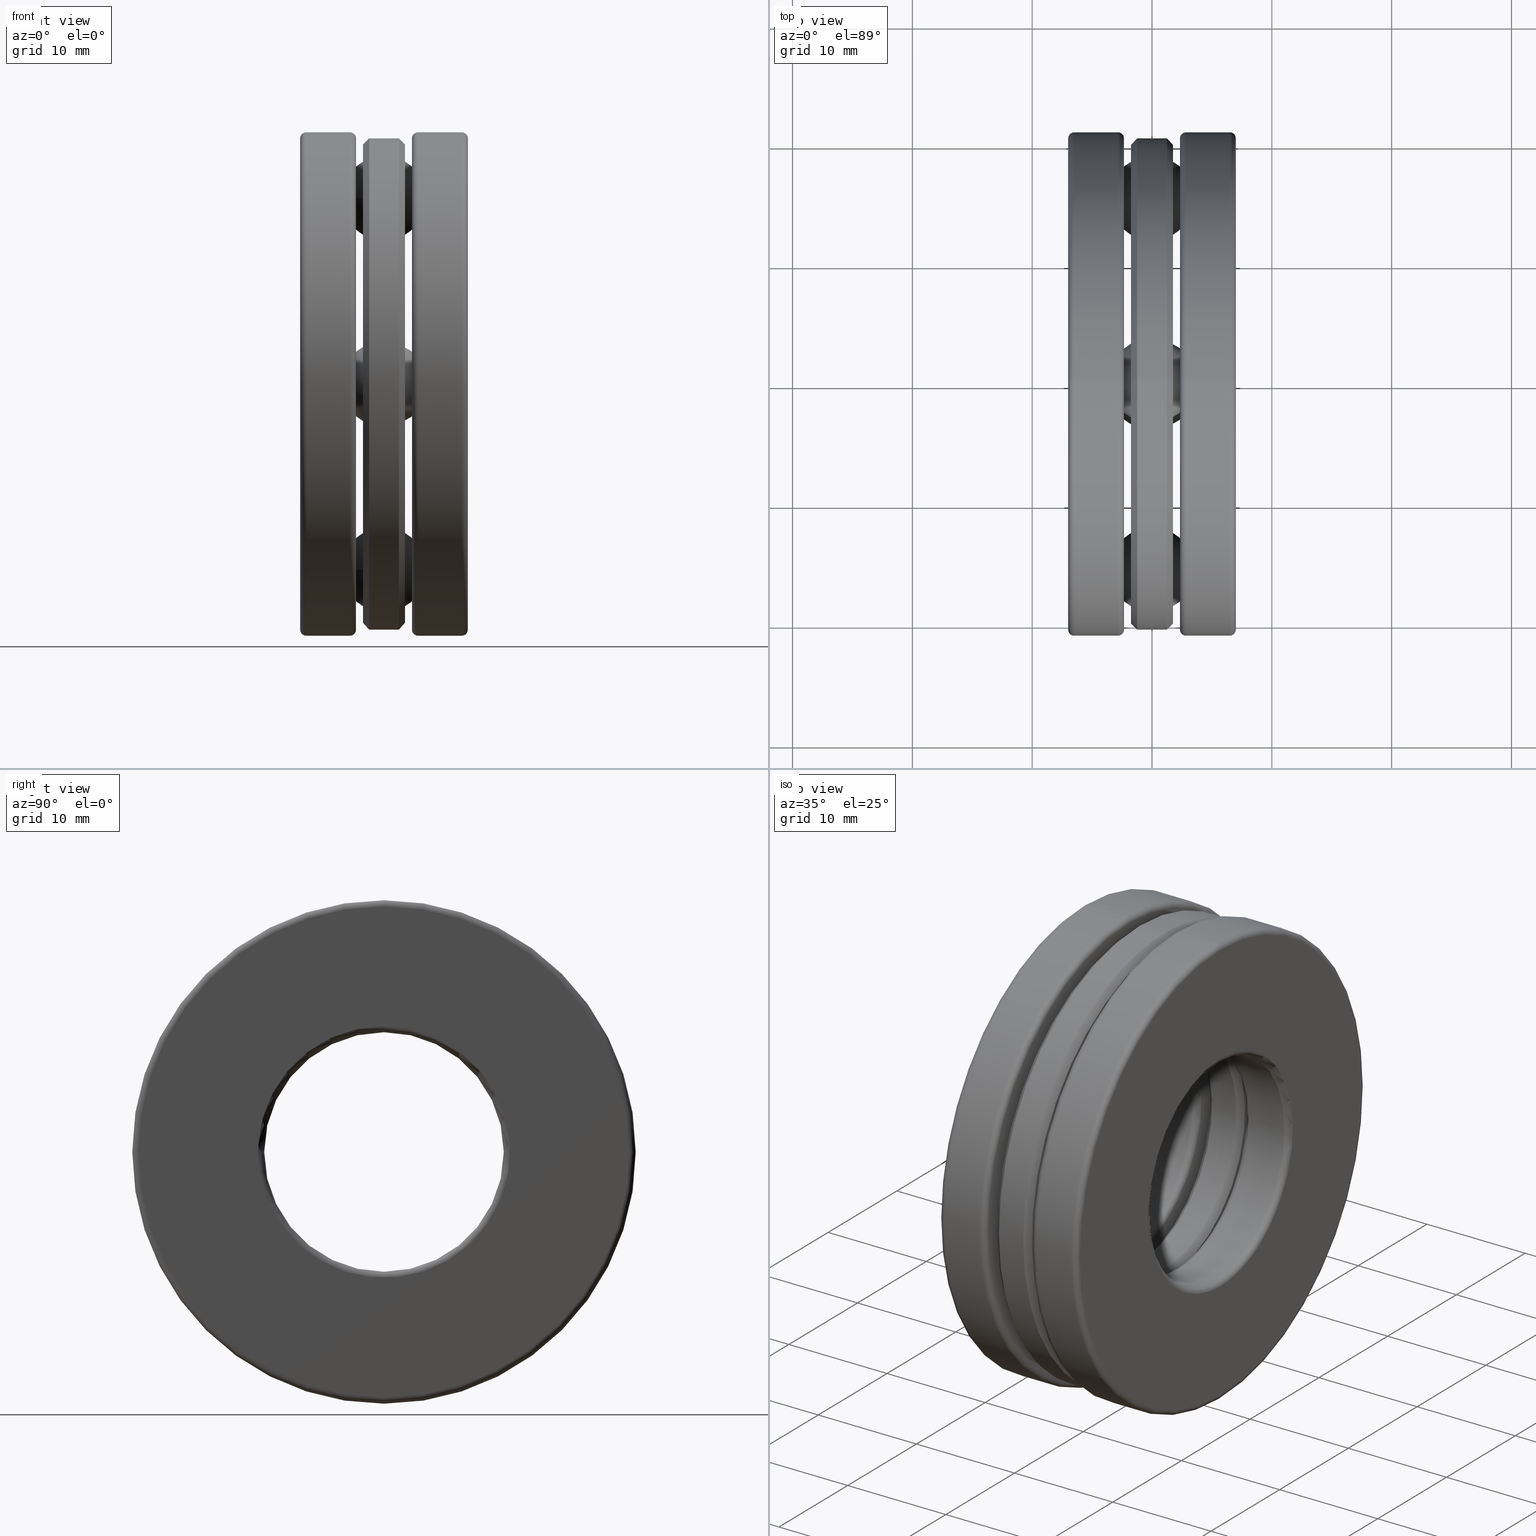
[diagram: canonical four-view strip — front | top / right | iso, engineering-drawing reading convention]
A machine part, canonical four-view strip (front | top / right | iso — engineering-drawing reading convention). The complete STEP part file that produces these views, byte-faithful:
ISO-10303-21;
HEADER;
FILE_DESCRIPTION (( 'STEP AP203' ),
    '1' );
FILE_NAME ('2904.5-ABB.step',
    '2017-03-07T16:42:55',
    ( '' ),
    ( '' ),
    'SwSTEP 2.0',
    'SolidWorks 2017',
    '' );
FILE_SCHEMA (( 'CONFIG_CONTROL_DESIGN' ));
ENDSEC;

DATA;
#1 = EDGE_LOOP ( 'NONE', ( #686 ) ) ;
#2 = DIRECTION ( 'NONE',  ( 0.0000000000000000000, 0.0000000000000000000, 1.000000000000000000 ) ) ;
#3 = PERSON_AND_ORGANIZATION ( #761, #297 ) ;
#4 = DIRECTION ( 'NONE',  ( 0.0000000000000000000, 0.0000000000000000000, 1.000000000000000000 ) ) ;
#5 = AXIS2_PLACEMENT_3D ( 'NONE', #178, #387, #816 ) ;
#6 = ORIENTED_EDGE ( 'NONE', *, *, #511, .T. ) ;
#7 = FACE_OUTER_BOUND ( 'NONE', #1, .T. ) ;
#8 = CIRCLE ( 'NONE', #5, 0.8069999999999999400 ) ;
#9 = EDGE_LOOP ( 'NONE', ( #657 ) ) ;
#10 = CIRCLE ( 'NONE', #358, 0.4334999999999999400 ) ;
#11 = CARTESIAN_POINT ( 'NONE',  ( 0.2755000000000001300, 0.0000000000000000000, 0.4135000000000000300 ) ) ;
#12 = AXIS2_PLACEMENT_3D ( 'NONE', #439, #689, #263 ) ;
#13 = EDGE_LOOP ( 'NONE', ( #453 ) ) ;
#14 = CARTESIAN_POINT ( 'NONE',  ( 0.09183517000000049300, 0.0000000000000000000, 0.0000000000000000000 ) ) ;
#15 = EDGE_LOOP ( 'NONE', ( #269 ) ) ;
#16 = AXIS2_PLACEMENT_3D ( 'NONE', #168, #612, #239 ) ;
#17 = CARTESIAN_POINT ( 'NONE',  ( -0.1118351699999999400, 0.0000000000000000000, 0.3934999999999999600 ) ) ;
#18 = VERTEX_POINT ( 'NONE', #77 ) ;
#19 = ADVANCED_FACE ( 'NONE', ( #340, #539 ), #139, .F. ) ;
#20 = CARTESIAN_POINT ( 'NONE',  ( 3.475782830664319800E-017, 0.6102499999999999600, 0.0000000000000000000 ) ) ;
#21 = ORIENTED_EDGE ( 'NONE', *, *, #219, .T. ) ;
#22 = APPLICATION_PROTOCOL_DEFINITION ( 'international standard', 'config_control_design', 1994, #294 ) ;
#23 = FACE_BOUND ( 'NONE', #375, .T. ) ;
#24 = DATE_TIME_ROLE ( 'creation_date' ) ;
#25 = EDGE_LOOP ( 'NONE', ( #418 ) ) ;
#26 = CARTESIAN_POINT ( 'NONE',  ( -0.1118351699999999400, 0.0000000000000000000, 0.0000000000000000000 ) ) ;
#27 = COORDINATED_UNIVERSAL_TIME_OFFSET ( 5, 0, .BEHIND. ) ;
#28 = VERTEX_POINT ( 'NONE', #217 ) ;
#29 = AXIS2_PLACEMENT_3D ( 'NONE', #254, #505, #2 ) ;
#30 = CIRCLE ( 'NONE', #198, 0.7869999999999998100 ) ;
#31 = PRODUCT_DEFINITION_SHAPE ( 'NONE', 'NONE',  #537 ) ;
#32 = AXIS2_PLACEMENT_3D ( 'NONE', #321, #378, #568 ) ;
#33 = DIRECTION ( 'NONE',  ( -1.000000000000000000, -0.0000000000000000000, -0.0000000000000000000 ) ) ;
#34 = CALENDAR_DATE ( 2017, 7, 3 ) ;
#35 = FACE_OUTER_BOUND ( 'NONE', #819, .T. ) ;
#36 = DIRECTION ( 'NONE',  ( -1.000000000000000000, -0.0000000000000000000, -0.0000000000000000000 ) ) ;
#37 = CC_DESIGN_PERSON_AND_ORGANIZATION_ASSIGNMENT ( #381, #404, ( #537 ) ) ;
#38 = DIRECTION ( 'NONE',  ( -1.000000000000000000, -0.0000000000000000000, -0.0000000000000000000 ) ) ;
#39 = EDGE_LOOP ( 'NONE', ( #60 ) ) ;
#40 = CARTESIAN_POINT ( 'NONE',  ( -0.09183516999999991000, 0.0000000000000000000, 0.0000000000000000000 ) ) ;
#41 = ORIENTED_EDGE ( 'NONE', *, *, #326, .F. ) ;
#42 = AXIS2_PLACEMENT_3D ( 'NONE', #137, #588, #279 ) ;
#43 = FACE_OUTER_BOUND ( 'NONE', #640, .T. ) ;
#44 = CARTESIAN_POINT ( 'NONE',  ( 3.475782830664319800E-017, -0.6102499999999999600, 0.0000000000000000000 ) ) ;
#45 = ORIENTED_EDGE ( 'NONE', *, *, #288, .T. ) ;
#46 = CARTESIAN_POINT ( 'NONE',  ( -0.06887500000000002000, 0.0000000000000000000, 0.0000000000000000000 ) ) ;
#47 = VERTEX_POINT ( 'NONE', #403 ) ;
#48 = FACE_OUTER_BOUND ( 'NONE', #457, .T. ) ;
#49 = DIRECTION ( 'NONE',  ( 1.000000000000000000, -0.0000000000000000000, 0.0000000000000000000 ) ) ;
#50 = DIRECTION ( 'NONE',  ( -0.0000000000000000000, -0.0000000000000000000, -1.000000000000000000 ) ) ;
#51 = CARTESIAN_POINT ( 'NONE',  ( 0.09183517000000049300, 0.0000000000000000000, 0.0000000000000000000 ) ) ;
#52 = APPROVAL ( #737, 'UNSPECIFIED' ) ;
#53 = CONICAL_SURFACE ( 'NONE', #762, 0.8069999999999999400, 0.7853981633974498300 ) ;
#54 = EDGE_LOOP ( 'NONE', ( #125 ) ) ;
#55 = CARTESIAN_POINT ( 'NONE',  ( 0.06887500000000003300, 0.6102499999999999600, 0.0000000000000000000 ) ) ;
#56 = DIRECTION ( 'NONE',  ( -1.000000000000000000, 0.0000000000000000000, 0.0000000000000000000 ) ) ;
#57 = DIRECTION ( 'NONE',  ( 0.0000000000000000000, 1.000000000000000000, -1.032657317192676500E-014 ) ) ;
#58 = FACE_OUTER_BOUND ( 'NONE', #63, .T. ) ;
#59 = AXIS2_PLACEMENT_3D ( 'NONE', #510, #258, #4 ) ;
#60 = ORIENTED_EDGE ( 'NONE', *, *, #300, .F. ) ;
#61 = ORIENTED_EDGE ( 'NONE', *, *, #519, .T. ) ;
#62 = FACE_OUTER_BOUND ( 'NONE', #436, .T. ) ;
#63 = EDGE_LOOP ( 'NONE', ( #732 ) ) ;
#64 = VERTEX_POINT ( 'NONE', #298 ) ;
#65 = CIRCLE ( 'NONE', #772, 0.8069999999999999400 ) ;
#66 = AXIS2_PLACEMENT_3D ( 'NONE', #766, #443, #756 ) ;
#67 = CARTESIAN_POINT ( 'NONE',  ( 0.04887499999999999500, 0.0000000000000000000, 0.8069999999999999400 ) ) ;
#68 = TOROIDAL_SURFACE ( 'NONE', #363, 0.8069999999999999400, 0.01999999999999978500 ) ;
#69 = CYLINDRICAL_SURFACE ( 'NONE', #503, 0.1455000000000000500 ) ;
#70 = AXIS2_PLACEMENT_3D ( 'NONE', #284, #532, #727 ) ;
#71 = ORIENTED_EDGE ( 'NONE', *, *, #430, .T. ) ;
#72 = ORIENTED_EDGE ( 'NONE', *, *, #326, .T. ) ;
#73 = CARTESIAN_POINT ( 'NONE',  ( -0.09183516999999991000, 0.0000000000000000000, 0.0000000000000000000 ) ) ;
#74 = CIRCLE ( 'NONE', #514, 0.4134999999999999800 ) ;
#75 = CARTESIAN_POINT ( 'NONE',  ( 0.0000000000000000000, 0.0000000000000000000, 0.0000000000000000000 ) ) ;
#76 = CARTESIAN_POINT ( 'NONE',  ( -0.06887499999999997800, 0.0000000000000000000, 0.0000000000000000000 ) ) ;
#77 = CARTESIAN_POINT ( 'NONE',  ( 0.09183517000000049300, 0.0000000000000000000, 0.4134999999999999800 ) ) ;
#78 = EDGE_LOOP ( 'NONE', ( #755 ) ) ;
#79 = DIRECTION ( 'NONE',  ( -1.000000000000000000, -0.0000000000000000000, -0.0000000000000000000 ) ) ;
#80 = DIRECTION ( 'NONE',  ( 0.0000000000000000000, 0.0000000000000000000, 1.000000000000000000 ) ) ;
#81 = ADVANCED_FACE ( 'NONE', ( #359, #185 ), #506, .T. ) ;
#82 = FACE_OUTER_BOUND ( 'NONE', #771, .T. ) ;
#83 = AXIS2_PLACEMENT_3D ( 'NONE', #14, #644, #454 ) ;
#84 = MECHANICAL_CONTEXT ( 'NONE', #294, 'mechanical' ) ;
#85 = PERSON_AND_ORGANIZATION ( #761, #297 ) ;
#86 = ADVANCED_FACE ( 'NONE', ( #304, #647 ), #315, .F. ) ;
#87 = FACE_OUTER_BOUND ( 'NONE', #702, .T. ) ;
#88 = APPROVAL_STATUS ( 'not_yet_approved' ) ;
#89 = DIRECTION ( 'NONE',  ( -1.000000000000000000, -0.0000000000000000000, -0.0000000000000000000 ) ) ;
#90 = EDGE_CURVE ( 'NONE', #392, #392, #248, .T. ) ;
#91 = CARTESIAN_POINT ( 'NONE',  ( -0.09183516999999991000, 0.0000000000000000000, 0.4134999999999999800 ) ) ;
#92 = ADVANCED_FACE ( 'NONE', ( ), #432, .T. ) ;
#93 = PERSON_AND_ORGANIZATION_ROLE ( 'design_supplier' ) ;
#94 = ORIENTED_EDGE ( 'NONE', *, *, #697, .F. ) ;
#95 = CC_DESIGN_APPROVAL ( #52, ( #797 ) ) ;
#96 = MANIFOLD_SOLID_BREP ( 'CirPattern4[1]', #547 ) ;
#97 = CARTESIAN_POINT ( 'NONE',  ( -0.06887500000000002000, 0.0000000000000000000, 0.7869999999999998100 ) ) ;
#98 = CIRCLE ( 'NONE', #261, 0.8070000000000000500 ) ;
#99 = DIRECTION ( 'NONE',  ( 0.0000000000000000000, 0.0000000000000000000, -1.000000000000000000 ) ) ;
#100 = CARTESIAN_POINT ( 'NONE',  ( -0.2755393700787402400, -2.130676487029022000E-015, -0.6102499999999999600 ) ) ;
#101 = EDGE_LOOP ( 'NONE', ( #726 ) ) ;
#102 = AXIS2_PLACEMENT_3D ( 'NONE', #55, #49, #324 ) ;
#103 = DIRECTION ( 'NONE',  ( 0.0000000000000000000, 0.0000000000000000000, -1.000000000000000000 ) ) ;
#104 = DIMENSIONAL_EXPONENTS ( 1.000000000000000000, 0.0000000000000000000, 0.0000000000000000000, 0.0000000000000000000, 0.0000000000000000000, 0.0000000000000000000, 0.0000000000000000000 ) ;
#105 = FACE_OUTER_BOUND ( 'NONE', #634, .T. ) ;
#106 = CARTESIAN_POINT ( 'NONE',  ( 0.06887500000000004700, 0.0000000000000000000, 0.0000000000000000000 ) ) ;
#107 = EDGE_LOOP ( 'NONE', ( #601 ) ) ;
#108 = PLANE ( 'NONE',  #16 ) ;
#109 = PERSON_AND_ORGANIZATION ( #761, #297 ) ;
#110 = VERTEX_POINT ( 'NONE', #662 ) ;
#111 = TOROIDAL_SURFACE ( 'NONE', #724, 0.8070000000000000500, 0.01999999999999997600 ) ;
#112 = ORIENTED_EDGE ( 'NONE', *, *, #288, .F. ) ;
#113 = AXIS2_PLACEMENT_3D ( 'NONE', #373, #504, #253 ) ;
#114 = FACE_OUTER_BOUND ( 'NONE', #364, .T. ) ;
#115 = EDGE_LOOP ( 'NONE', ( #667 ) ) ;
#116 = DIRECTION ( 'NONE',  ( 0.0000000000000000000, -1.000000000000000000, 1.047444401652940200E-014 ) ) ;
#117 = VERTEX_POINT ( 'NONE', #720 ) ;
#118 = SPHERICAL_SURFACE ( 'NONE', #206, 0.1405000000000000400 ) ;
#119 = EDGE_CURVE ( 'NONE', #632, #632, #235, .T. ) ;
#120 = CARTESIAN_POINT ( 'NONE',  ( -0.2755393700787402400, -0.6102499999999999600, 0.0000000000000000000 ) ) ;
#121 = CARTESIAN_POINT ( 'NONE',  ( -0.2555000000000000600, 0.0000000000000000000, 0.3934999999999999600 ) ) ;
#122 = CLOSED_SHELL ( 'NONE', ( #207, #410, #796, #783, #789, #734, #155, #417, #81, #728 ) ) ;
#123 = AXIS2_PLACEMENT_3D ( 'NONE', #20, #604, #229 ) ;
#124 = CIRCLE ( 'NONE', #102, 0.1455000000000000500 ) ;
#125 = ORIENTED_EDGE ( 'NONE', *, *, #90, .F. ) ;
#126 = PERSON_AND_ORGANIZATION ( #761, #297 ) ;
#127 = VERTEX_POINT ( 'NONE', #133 ) ;
#128 = AXIS2_PLACEMENT_3D ( 'NONE', #194, #638, #330 ) ;
#129 = CLOSED_SHELL ( 'NONE', ( #602, #286, #725, #462, #595, #536, #718, #295, #466, #663, #153, #19 ) ) ;
#130 = FACE_BOUND ( 'NONE', #15, .T. ) ;
#131 = EDGE_LOOP ( 'NONE', ( #452 ) ) ;
#132 = CARTESIAN_POINT ( 'NONE',  ( 0.0000000000000000000, 0.0000000000000000000, 0.0000000000000000000 ) ) ;
#133 = CARTESIAN_POINT ( 'NONE',  ( 0.06887500000000003300, 0.6102499999999999600, -0.1455000000000000500 ) ) ;
#134 = FACE_BOUND ( 'NONE', #323, .T. ) ;
#135 = PLANE ( 'NONE',  #42 ) ;
#136 = CARTESIAN_POINT ( 'NONE',  ( -0.09183516999999991000, 0.0000000000000000000, 0.7165822695660687400 ) ) ;
#137 = CARTESIAN_POINT ( 'NONE',  ( -0.09183516999999991000, 0.0000000000000000000, 0.0000000000000000000 ) ) ;
#138 = AXIS2_PLACEMENT_3D ( 'NONE', #376, #256, #690 ) ;
#139 = CYLINDRICAL_SURFACE ( 'NONE', #585, 0.1455000000000000500 ) ;
#140 = EDGE_LOOP ( 'NONE', ( #148 ) ) ;
#141 = DIRECTION ( 'NONE',  ( -1.000000000000000000, -0.0000000000000000000, -0.0000000000000000000 ) ) ;
#142 = VERTEX_POINT ( 'NONE', #792 ) ;
#143 = CARTESIAN_POINT ( 'NONE',  ( 0.2755000000000001300, 0.0000000000000000000, 0.8069999999999999400 ) ) ;
#144 = DIRECTION ( 'NONE',  ( 0.0000000000000000000, 0.0000000000000000000, 1.000000000000000000 ) ) ;
#145 = APPROVAL_STATUS ( 'not_yet_approved' ) ;
#146 = ORIENTED_EDGE ( 'NONE', *, *, #393, .F. ) ;
#147 = CARTESIAN_POINT ( 'NONE',  ( 0.2555000000000006200, 0.0000000000000000000, 0.8269999999999999600 ) ) ;
#148 = ORIENTED_EDGE ( 'NONE', *, *, #625, .F. ) ;
#149 = AXIS2_PLACEMENT_3D ( 'NONE', #76, #416, #456 ) ;
#150 = PERSON_AND_ORGANIZATION_ROLE ( 'creator' ) ;
#151 = CYLINDRICAL_SURFACE ( 'NONE', #448, 0.3934999999999999600 ) ;
#152 = MANIFOLD_SOLID_BREP ( 'CirPattern7', #129 ) ;
#153 = ADVANCED_FACE ( 'NONE', ( #62, #105 ), #69, .F. ) ;
#154 = AXIS2_PLACEMENT_3D ( 'NONE', #44, #50, #56 ) ;
#155 = ADVANCED_FACE ( 'NONE', ( #467, #395 ), #589, .T. ) ;
#156 = DIRECTION ( 'NONE',  ( -1.000000000000000000, -0.0000000000000000000, -0.0000000000000000000 ) ) ;
#157 = EDGE_LOOP ( 'NONE', ( #516 ) ) ;
#158 = EDGE_CURVE ( 'NONE', #671, #671, #752, .T. ) ;
#159 = DIRECTION ( 'NONE',  ( 0.0000000000000000000, -1.000000000000000000, 3.285727827431243100E-015 ) ) ;
#160 = EDGE_LOOP ( 'NONE', ( #624 ) ) ;
#161 = PERSON_AND_ORGANIZATION ( #761, #297 ) ;
#162 = AXIS2_PLACEMENT_3D ( 'NONE', #764, #571, #760 ) ;
#163 = DIRECTION ( 'NONE',  ( 0.0000000000000000000, 0.0000000000000000000, 1.000000000000000000 ) ) ;
#164 = LENGTH_MEASURE_WITH_UNIT ( LENGTH_MEASURE( 0.02539999999999999900 ), #179 );
#165 = EDGE_CURVE ( 'NONE', #240, #240, #281, .T. ) ;
#166 = CARTESIAN_POINT ( 'NONE',  ( 0.2555000000000006200, 0.0000000000000000000, 0.0000000000000000000 ) ) ;
#167 = CIRCLE ( 'NONE', #636, 0.5039177304339316200 ) ;
#168 = CARTESIAN_POINT ( 'NONE',  ( -0.06887499999999997800, -8.316656230711899400E-018, 0.0000000000000000000 ) ) ;
#169 = ADVANCED_BREP_SHAPE_REPRESENTATION ( '2904.5-ABB', ( #442, #779, #741, #96, #332, #703, #152, #498 ), #292 ) ;
#170 = DIRECTION ( 'NONE',  ( 0.0000000000000000000, 0.0000000000000000000, 1.000000000000000000 ) ) ;
#171 = DIRECTION ( 'NONE',  ( -1.000000000000000000, -0.0000000000000000000, -0.0000000000000000000 ) ) ;
#172 = ORIENTED_EDGE ( 'NONE', *, *, #472, .F. ) ;
#173 = DIRECTION ( 'NONE',  ( -1.000000000000000000, -0.0000000000000000000, -0.0000000000000000000 ) ) ;
#174 = COORDINATED_UNIVERSAL_TIME_OFFSET ( 5, 0, .BEHIND. ) ;
#175 = VERTEX_POINT ( 'NONE', #593 ) ;
#176 = CARTESIAN_POINT ( 'NONE',  ( -0.09183516999999991000, 0.0000000000000000000, 0.0000000000000000000 ) ) ;
#177 = CIRCLE ( 'NONE', #162, 0.1455000000000000500 ) ;
#178 = CARTESIAN_POINT ( 'NONE',  ( 0.2755000000000001300, 0.0000000000000000000, 0.0000000000000000000 ) ) ;
#179 =( LENGTH_UNIT ( ) NAMED_UNIT ( * ) SI_UNIT ( $, .METRE. ) );
#180 = EDGE_CURVE ( 'NONE', #370, #370, #784, .T. ) ;
#181 = EDGE_LOOP ( 'NONE', ( #738 ) ) ;
#182 = AXIS2_PLACEMENT_3D ( 'NONE', #740, #36, #616 ) ;
#183 = CARTESIAN_POINT ( 'NONE',  ( 3.475782830664319800E-017, -2.130676487029022000E-015, -0.6102499999999999600 ) ) ;
#184 = UNCERTAINTY_MEASURE_WITH_UNIT (LENGTH_MEASURE( 1.000000000000000100E-005 ), #349, 'distance_accuracy_value', 'NONE');
#185 = FACE_OUTER_BOUND ( 'NONE', #696, .T. ) ;
#186 = CARTESIAN_POINT ( 'NONE',  ( 0.06887500000000003300, -0.6102499999999999600, 0.1455000000000000500 ) ) ;
#187 = DIRECTION ( 'NONE',  ( 0.0000000000000000000, 0.0000000000000000000, 1.000000000000000000 ) ) ;
#188 = DIRECTION ( 'NONE',  ( -1.000000000000000000, 0.0000000000000000000, 0.0000000000000000000 ) ) ;
#189 = APPROVAL_DATE_TIME ( #566, #706 ) ;
#190 = FACE_OUTER_BOUND ( 'NONE', #446, .T. ) ;
#191 = EDGE_LOOP ( 'NONE', ( #260 ) ) ;
#192 = CIRCLE ( 'NONE', #224, 0.8269999999999999600 ) ;
#193 = FACE_BOUND ( 'NONE', #201, .T. ) ;
#194 = CARTESIAN_POINT ( 'NONE',  ( -0.2555000000000000600, 0.0000000000000000000, 0.0000000000000000000 ) ) ;
#195 = DATE_AND_TIME ( #252, #369 ) ;
#196 = VERTEX_POINT ( 'NONE', #413 ) ;
#197 = FACE_OUTER_BOUND ( 'NONE', #520, .T. ) ;
#198 = AXIS2_PLACEMENT_3D ( 'NONE', #46, #171, #611 ) ;
#199 = AXIS2_PLACEMENT_3D ( 'NONE', #722, #470, #791 ) ;
#200 = FACE_OUTER_BOUND ( 'NONE', #781, .T. ) ;
#201 = EDGE_LOOP ( 'NONE', ( #338 ) ) ;
#202 = DIRECTION ( 'NONE',  ( -1.000000000000000000, -0.0000000000000000000, -0.0000000000000000000 ) ) ;
#203 = LOCAL_TIME ( 11, 42, 55.00000000000000000, #769 ) ;
#204 = CIRCLE ( 'NONE', #421, 0.8070000000000000500 ) ;
#205 = DIRECTION ( 'NONE',  ( 0.0000000000000000000, 0.0000000000000000000, -1.000000000000000000 ) ) ;
#206 = AXIS2_PLACEMENT_3D ( 'NONE', #570, #116, #380 ) ;
#207 = ADVANCED_FACE ( 'NONE', ( #222, #717 ), #628, .F. ) ;
#208 = EDGE_LOOP ( 'NONE', ( #563 ) ) ;
#209 = CARTESIAN_POINT ( 'NONE',  ( 0.09183517000000049300, 0.0000000000000000000, 0.0000000000000000000 ) ) ;
#210 = ORIENTED_EDGE ( 'NONE', *, *, #119, .F. ) ;
#211 = ADVANCED_FACE ( 'NONE', ( #82, #388 ), #579, .T. ) ;
#212 = AXIS2_PLACEMENT_3D ( 'NONE', #268, #270, #700 ) ;
#213 = CARTESIAN_POINT ( 'NONE',  ( -0.06887499999999996400, -0.6102499999999999600, 0.1455000000000000500 ) ) ;
#214 = ORIENTED_EDGE ( 'NONE', *, *, #90, .T. ) ;
#215 = PERSON_AND_ORGANIZATION ( #761, #297 ) ;
#216 = CALENDAR_DATE ( 2017, 7, 3 ) ;
#217 = CARTESIAN_POINT ( 'NONE',  ( -0.09183516999999991000, 0.0000000000000000000, 0.8070000000000000500 ) ) ;
#218 = FACE_OUTER_BOUND ( 'NONE', #531, .T. ) ;
#219 = EDGE_CURVE ( 'NONE', #814, #814, #333, .T. ) ;
#220 = ADVANCED_FACE ( 'NONE', ( #293, #793 ), #423, .T. ) ;
#221 = EDGE_CURVE ( 'NONE', #353, #353, #811, .T. ) ;
#222 = FACE_OUTER_BOUND ( 'NONE', #739, .T. ) ;
#223 = DIRECTION ( 'NONE',  ( 0.0000000000000000000, 0.0000000000000000000, 1.000000000000000000 ) ) ;
#224 = AXIS2_PLACEMENT_3D ( 'NONE', #477, #712, #648 ) ;
#225 = CARTESIAN_POINT ( 'NONE',  ( 0.0000000000000000000, 0.0000000000000000000, 0.0000000000000000000 ) ) ;
#226 = ADVANCED_FACE ( 'NONE', ( #114, #767 ), #745, .F. ) ;
#227 = LOCAL_TIME ( 11, 42, 55.00000000000000000, #631 ) ;
#228 = FACE_BOUND ( 'NONE', #13, .T. ) ;
#229 = DIRECTION ( 'NONE',  ( -1.000000000000000000, 0.0000000000000000000, 0.0000000000000000000 ) ) ;
#230 = PERSON_AND_ORGANIZATION_ROLE ( 'classification_officer' ) ;
#231 = AXIS2_PLACEMENT_3D ( 'NONE', #622, #684, #500 ) ;
#232 = CARTESIAN_POINT ( 'NONE',  ( 0.1118351700000004800, 0.0000000000000000000, 0.0000000000000000000 ) ) ;
#233 = ORIENTED_EDGE ( 'NONE', *, *, #393, .T. ) ;
#234 = DIRECTION ( 'NONE',  ( 0.0000000000000000000, 0.0000000000000000000, 1.000000000000000000 ) ) ;
#235 = CIRCLE ( 'NONE', #32, 0.1455000000000000500 ) ;
#236 = DIRECTION ( 'NONE',  ( 0.0000000000000000000, 0.0000000000000000000, -1.000000000000000000 ) ) ;
#237 = ORIENTED_EDGE ( 'NONE', *, *, #697, .T. ) ;
#238 = DIRECTION ( 'NONE',  ( 0.0000000000000000000, 0.0000000000000000000, 1.000000000000000000 ) ) ;
#239 = DIRECTION ( 'NONE',  ( 0.0000000000000000000, 0.0000000000000000000, -1.000000000000000000 ) ) ;
#240 = VERTEX_POINT ( 'NONE', #121 ) ;
#241 = FACE_OUTER_BOUND ( 'NONE', #9, .T. ) ;
#242 = DIRECTION ( 'NONE',  ( -1.000000000000000000, -0.0000000000000000000, -0.0000000000000000000 ) ) ;
#243 = AXIS2_PLACEMENT_3D ( 'NONE', #75, #653, #383 ) ;
#244 = CARTESIAN_POINT ( 'NONE',  ( -0.06887499999999996400, 0.1455000000000064300, 0.6102499999999985200 ) ) ;
#245 = DIRECTION ( 'NONE',  ( -1.000000000000000000, -0.0000000000000000000, -0.0000000000000000000 ) ) ;
#246 = DIRECTION ( 'NONE',  ( 0.0000000000000000000, 1.000000000000000000, -3.491481338843133400E-015 ) ) ;
#247 = CIRCLE ( 'NONE', #212, 0.1455000000000000500 ) ;
#248 = CIRCLE ( 'NONE', #817, 0.4134999999999999800 ) ;
#249 = EDGE_LOOP ( 'NONE', ( #447 ) ) ;
#250 = ORIENTED_EDGE ( 'NONE', *, *, #451, .F. ) ;
#251 = AXIS2_PLACEMENT_3D ( 'NONE', #354, #461, #144 ) ;
#252 = CALENDAR_DATE ( 2017, 7, 3 ) ;
#253 = DIRECTION ( 'NONE',  ( 0.0000000000000000000, 0.0000000000000000000, 1.000000000000000000 ) ) ;
#254 = CARTESIAN_POINT ( 'NONE',  ( -0.2755000000000000200, 0.0000000000000000000, 0.0000000000000000000 ) ) ;
#255 = CIRCLE ( 'NONE', #679, 0.7165822695660684100 ) ;
#256 = DIRECTION ( 'NONE',  ( -1.000000000000000000, -0.0000000000000000000, -0.0000000000000000000 ) ) ;
#257 = DIRECTION ( 'NONE',  ( 0.0000000000000000000, 0.0000000000000000000, 1.000000000000000000 ) ) ;
#258 = DIRECTION ( 'NONE',  ( -1.000000000000000000, -0.0000000000000000000, -0.0000000000000000000 ) ) ;
#259 = ORIENTED_EDGE ( 'NONE', *, *, #303, .T. ) ;
#260 = ORIENTED_EDGE ( 'NONE', *, *, #165, .F. ) ;
#261 = AXIS2_PLACEMENT_3D ( 'NONE', #176, #746, #750 ) ;
#262 = FACE_BOUND ( 'NONE', #813, .T. ) ;
#263 = DIRECTION ( 'NONE',  ( 0.0000000000000000000, 0.0000000000000000000, 1.000000000000000000 ) ) ;
#264 = FACE_OUTER_BOUND ( 'NONE', #39, .T. ) ;
#265 = DIRECTION ( 'NONE',  ( 0.0000000000000000000, 0.0000000000000000000, -1.000000000000000000 ) ) ;
#266 = AXIS2_PLACEMENT_3D ( 'NONE', #132, #141, #786 ) ;
#267 = CIRCLE ( 'NONE', #674, 0.5039177304339312900 ) ;
#268 = CARTESIAN_POINT ( 'NONE',  ( 0.06887500000000003300, -2.130676487029022000E-015, -0.6102499999999999600 ) ) ;
#269 = ORIENTED_EDGE ( 'NONE', *, *, #342, .F. ) ;
#270 = DIRECTION ( 'NONE',  ( 1.000000000000000000, 0.0000000000000000000, 0.0000000000000000000 ) ) ;
#271 = EDGE_CURVE ( 'NONE', #641, #641, #272, .T. ) ;
#272 = CIRCLE ( 'NONE', #711, 0.7165822695660687400 ) ;
#273 = EDGE_LOOP ( 'NONE', ( #437 ) ) ;
#274 = ORIENTED_EDGE ( 'NONE', *, *, #776, .T. ) ;
#275 = FACE_OUTER_BOUND ( 'NONE', #107, .T. ) ;
#276 = AXIS2_PLACEMENT_3D ( 'NONE', #450, #480, #374 ) ;
#277 = CLOSED_SHELL ( 'NONE', ( #798 ) ) ;
#278 = ADVANCED_FACE ( 'NONE', ( #530, #43 ), #701, .T. ) ;
#279 = DIRECTION ( 'NONE',  ( 0.0000000000000000000, 0.0000000000000000000, -1.000000000000000000 ) ) ;
#280 = AXIS2_PLACEMENT_3D ( 'NONE', #420, #551, #675 ) ;
#281 = CIRCLE ( 'NONE', #199, 0.3934999999999999600 ) ;
#282 = DIRECTION ( 'NONE',  ( -1.000000000000000000, -0.0000000000000000000, -0.0000000000000000000 ) ) ;
#283 = ORIENTED_EDGE ( 'NONE', *, *, #445, .T. ) ;
#284 = CARTESIAN_POINT ( 'NONE',  ( 0.06887500000000003300, -0.6102499999999999600, 0.0000000000000000000 ) ) ;
#285 = LOCAL_TIME ( 11, 42, 55.00000000000000000, #174 ) ;
#286 = ADVANCED_FACE ( 'NONE', ( #561, #264 ), #53, .T. ) ;
#287 = VERTEX_POINT ( 'NONE', #91 ) ;
#288 = EDGE_CURVE ( 'NONE', #460, #460, #366, .T. ) ;
#289 = EDGE_LOOP ( 'NONE', ( #695 ) ) ;
#290 = APPLICATION_PROTOCOL_DEFINITION ( 'international standard', 'config_control_design', 1994, #733 ) ;
#291 = FACE_OUTER_BOUND ( 'NONE', #824, .T. ) ;
#292 =( GEOMETRIC_REPRESENTATION_CONTEXT ( 3 ) GLOBAL_UNCERTAINTY_ASSIGNED_CONTEXT ( ( #184 ) ) GLOBAL_UNIT_ASSIGNED_CONTEXT ( ( #349, #301, #535 ) ) REPRESENTATION_CONTEXT ( 'NONE', 'WORKASPACE' ) );
#293 = FACE_OUTER_BOUND ( 'NONE', #485, .T. ) ;
#294 = APPLICATION_CONTEXT ( 'configuration controlled 3d designs of mechanical parts and assemblies' ) ;
#295 = ADVANCED_FACE ( 'NONE', ( #409, #193, #730, #515, #23, #707 ), #108, .F. ) ;
#296 = EDGE_LOOP ( 'NONE', ( #368 ) ) ;
#297 = ORGANIZATION ( 'UNSPECIFIED', 'UNSPECIFIED', '' ) ;
#298 = CARTESIAN_POINT ( 'NONE',  ( -0.04887500000000003000, 0.0000000000000000000, 0.8069999999999999400 ) ) ;
#299 = FACE_OUTER_BOUND ( 'NONE', #527, .T. ) ;
#300 = EDGE_CURVE ( 'NONE', #335, #335, #455, .T. ) ;
#301 =( NAMED_UNIT ( * ) PLANE_ANGLE_UNIT ( ) SI_UNIT ( $, .RADIAN. ) );
#302 = PLANE ( 'NONE',  #385 ) ;
#303 = EDGE_CURVE ( 'NONE', #680, #680, #350, .T. ) ;
#304 = FACE_BOUND ( 'NONE', #639, .T. ) ;
#305 = CARTESIAN_POINT ( 'NONE',  ( 0.0000000000000000000, 0.0000000000000000000, 0.0000000000000000000 ) ) ;
#306 = CC_DESIGN_APPROVAL ( #569, ( #537 ) ) ;
#307 = EDGE_LOOP ( 'NONE', ( #360 ) ) ;
#308 = DATE_AND_TIME ( #216, #391 ) ;
#309 = DIRECTION ( 'NONE',  ( 0.0000000000000000000, 0.0000000000000000000, 1.000000000000000000 ) ) ;
#310 = ORIENTED_EDGE ( 'NONE', *, *, #384, .F. ) ;
#311 = DIRECTION ( 'NONE',  ( 1.000000000000000000, 0.0000000000000000000, 0.0000000000000000000 ) ) ;
#312 = CARTESIAN_POINT ( 'NONE',  ( 0.2555000000000006200, 0.0000000000000000000, 0.0000000000000000000 ) ) ;
#313 = FACE_OUTER_BOUND ( 'NONE', #489, .T. ) ;
#314 = AXIS2_PLACEMENT_3D ( 'NONE', #26, #465, #598 ) ;
#315 = PLANE ( 'NONE',  #685 ) ;
#316 = CLOSED_SHELL ( 'NONE', ( #474 ) ) ;
#317 = VERTEX_POINT ( 'NONE', #705 ) ;
#318 = FACE_BOUND ( 'NONE', #140, .T. ) ;
#319 = CARTESIAN_POINT ( 'NONE',  ( 0.1118351700000004800, 0.0000000000000000000, 0.3934999999999999600 ) ) ;
#320 = DIRECTION ( 'NONE',  ( 1.000000000000000000, 0.0000000000000000000, 0.0000000000000000000 ) ) ;
#321 = CARTESIAN_POINT ( 'NONE',  ( -0.06887499999999996400, 6.392029461087066800E-015, 0.6102499999999999600 ) ) ;
#322 = AXIS2_PLACEMENT_3D ( 'NONE', #106, #311, #103 ) ;
#323 = EDGE_LOOP ( 'NONE', ( #502 ) ) ;
#324 = DIRECTION ( 'NONE',  ( 0.0000000000000000000, 0.0000000000000000000, -1.000000000000000000 ) ) ;
#325 = EDGE_LOOP ( 'NONE', ( #210 ) ) ;
#326 = EDGE_CURVE ( 'NONE', #473, #473, #8, .T. ) ;
#327 = DIRECTION ( 'NONE',  ( 1.000000000000000000, 0.0000000000000000000, 0.0000000000000000000 ) ) ;
#328 = VERTEX_POINT ( 'NONE', #213 ) ;
#329 = CARTESIAN_POINT ( 'NONE',  ( -0.09183516999999991000, 0.0000000000000000000, 0.0000000000000000000 ) ) ;
#330 = DIRECTION ( 'NONE',  ( 0.0000000000000000000, 0.0000000000000000000, 1.000000000000000000 ) ) ;
#331 = EDGE_LOOP ( 'NONE', ( #617 ) ) ;
#332 = MANIFOLD_SOLID_BREP ( 'CirPattern4[2]', #493 ) ;
#333 = CIRCLE ( 'NONE', #339, 0.8269999999999999600 ) ;
#334 = ORIENTED_EDGE ( 'NONE', *, *, #511, .F. ) ;
#335 = VERTEX_POINT ( 'NONE', #67 ) ;
#336 = CC_DESIGN_PERSON_AND_ORGANIZATION_ASSIGNMENT ( #85, #529, ( #412 ) ) ;
#337 = TOROIDAL_SURFACE ( 'NONE', #113, 0.8070000000000000500, 0.01999999999999995900 ) ;
#338 = ORIENTED_EDGE ( 'NONE', *, *, #577, .F. ) ;
#339 = AXIS2_PLACEMENT_3D ( 'NONE', #232, #173, #805 ) ;
#340 = FACE_OUTER_BOUND ( 'NONE', #818, .T. ) ;
#341 = ORIENTED_EDGE ( 'NONE', *, *, #271, .T. ) ;
#342 = EDGE_CURVE ( 'NONE', #127, #127, #124, .T. ) ;
#343 = CARTESIAN_POINT ( 'NONE',  ( -0.2755393700787402400, 0.6102499999999999600, 0.0000000000000000000 ) ) ;
#344 = VERTEX_POINT ( 'NONE', #664 ) ;
#345 = CC_DESIGN_PERSON_AND_ORGANIZATION_ASSIGNMENT ( #161, #150, ( #661 ) ) ;
#346 = DIRECTION ( 'NONE',  ( 0.0000000000000000000, 0.0000000000000000000, 1.000000000000000000 ) ) ;
#347 = EDGE_LOOP ( 'NONE', ( #283 ) ) ;
#348 = AXIS2_PLACEMENT_3D ( 'NONE', #422, #242, #748 ) ;
#349 =( CONVERSION_BASED_UNIT ( 'INCH', #164 ) LENGTH_UNIT ( ) NAMED_UNIT ( #104 ) );
#350 = CIRCLE ( 'NONE', #59, 0.7869999999999998100 ) ;
#351 = ORIENTED_EDGE ( 'NONE', *, *, #119, .T. ) ;
#352 = APPROVAL_ROLE ( '' ) ;
#353 = VERTEX_POINT ( 'NONE', #319 ) ;
#354 = CARTESIAN_POINT ( 'NONE',  ( 3.475782830664319800E-017, 0.0000000000000000000, 0.0000000000000000000 ) ) ;
#355 = ADVANCED_FACE ( 'NONE', ( ), #677, .T. ) ;
#356 = AXIS2_PLACEMENT_3D ( 'NONE', #822, #560, #495 ) ;
#357 = ADVANCED_FACE ( 'NONE', ( #637, #313 ), #656, .T. ) ;
#358 = AXIS2_PLACEMENT_3D ( 'NONE', #490, #484, #486 ) ;
#359 = FACE_OUTER_BOUND ( 'NONE', #115, .T. ) ;
#360 = ORIENTED_EDGE ( 'NONE', *, *, #788, .T. ) ;
#361 = DIRECTION ( 'NONE',  ( 0.0000000000000000000, 0.0000000000000000000, 1.000000000000000000 ) ) ;
#362 = CONICAL_SURFACE ( 'NONE', #459, 0.4334999999999999400, 0.7853981633974479500 ) ;
#363 = AXIS2_PLACEMENT_3D ( 'NONE', #757, #773, #581 ) ;
#364 = EDGE_LOOP ( 'NONE', ( #274 ) ) ;
#365 = CIRCLE ( 'NONE', #83, 0.4134999999999999800 ) ;
#366 = CIRCLE ( 'NONE', #280, 0.1455000000000000500 ) ;
#367 = DIRECTION ( 'NONE',  ( -1.000000000000000000, -0.0000000000000000000, -0.0000000000000000000 ) ) ;
#368 = ORIENTED_EDGE ( 'NONE', *, *, #445, .F. ) ;
#369 = LOCAL_TIME ( 11, 42, 55.00000000000000000, #27 ) ;
#370 = VERTEX_POINT ( 'NONE', #751 ) ;
#371 = CARTESIAN_POINT ( 'NONE',  ( -0.06887499999999996400, -0.6102499999999999600, 0.0000000000000000000 ) ) ;
#372 = FACE_OUTER_BOUND ( 'NONE', #273, .T. ) ;
#373 = CARTESIAN_POINT ( 'NONE',  ( -0.2555000000000000600, 0.0000000000000000000, 0.0000000000000000000 ) ) ;
#374 = DIRECTION ( 'NONE',  ( 0.0000000000000000000, 0.0000000000000000000, -1.000000000000000000 ) ) ;
#375 = EDGE_LOOP ( 'NONE', ( #334 ) ) ;
#376 = CARTESIAN_POINT ( 'NONE',  ( -0.1118351699999999400, 0.0000000000000000000, 0.0000000000000000000 ) ) ;
#377 = EDGE_CURVE ( 'NONE', #787, #787, #441, .T. ) ;
#378 = DIRECTION ( 'NONE',  ( -1.000000000000000000, -0.0000000000000000000, -0.0000000000000000000 ) ) ;
#379 = EDGE_LOOP ( 'NONE', ( #341 ) ) ;
#380 = DIRECTION ( 'NONE',  ( -1.000000000000000000, 0.0000000000000000000, 0.0000000000000000000 ) ) ;
#381 = PERSON_AND_ORGANIZATION ( #761, #297 ) ;
#382 = FACE_OUTER_BOUND ( 'NONE', #433, .T. ) ;
#383 = DIRECTION ( 'NONE',  ( 0.0000000000000000000, 0.0000000000000000000, 1.000000000000000000 ) ) ;
#384 = EDGE_CURVE ( 'NONE', #721, #721, #608, .T. ) ;
#385 = AXIS2_PLACEMENT_3D ( 'NONE', #715, #709, #99 ) ;
#386 = ORIENTED_EDGE ( 'NONE', *, *, #428, .F. ) ;
#387 = DIRECTION ( 'NONE',  ( -1.000000000000000000, -0.0000000000000000000, -0.0000000000000000000 ) ) ;
#388 = FACE_OUTER_BOUND ( 'NONE', #507, .T. ) ;
#389 = EDGE_LOOP ( 'NONE', ( #214 ) ) ;
#390 = AXIS2_PLACEMENT_3D ( 'NONE', #183, #246, #188 ) ;
#391 = LOCAL_TIME ( 11, 42, 55.00000000000000000, #649 ) ;
#392 = VERTEX_POINT ( 'NONE', #682 ) ;
#393 = EDGE_CURVE ( 'NONE', #610, #610, #247, .T. ) ;
#394 = DESIGN_CONTEXT ( 'detailed design', #733, 'design' ) ;
#395 = FACE_OUTER_BOUND ( 'NONE', #191, .T. ) ;
#396 = EDGE_LOOP ( 'NONE', ( #45 ) ) ;
#397 = PERSON_AND_ORGANIZATION ( #761, #297 ) ;
#398 = AXIS2_PLACEMENT_3D ( 'NONE', #508, #320, #57 ) ;
#399 = CYLINDRICAL_SURFACE ( 'NONE', #12, 0.8069999999999999400 ) ;
#400 = ORIENTED_EDGE ( 'NONE', *, *, #776, .F. ) ;
#401 = AXIS2_PLACEMENT_3D ( 'NONE', #491, #38, #614 ) ;
#402 = FACE_BOUND ( 'NONE', #731, .T. ) ;
#403 = CARTESIAN_POINT ( 'NONE',  ( -0.06887499999999997800, 0.0000000000000000000, 0.4334999999999999400 ) ) ;
#404 = PERSON_AND_ORGANIZATION_ROLE ( 'creator' ) ;
#405 = FACE_OUTER_BOUND ( 'NONE', #101, .T. ) ;
#406 = ADVANCED_FACE ( 'NONE', ( #492, #291 ), #68, .T. ) ;
#407 = AXIS2_PLACEMENT_3D ( 'NONE', #371, #367, #309 ) ;
#408 = CARTESIAN_POINT ( 'NONE',  ( 0.1118351700000004800, 0.0000000000000000000, 0.0000000000000000000 ) ) ;
#409 = FACE_BOUND ( 'NONE', #600, .T. ) ;
#410 = ADVANCED_FACE ( 'NONE', ( #645, #431 ), #135, .T. ) ;
#411 = ORIENTED_EDGE ( 'NONE', *, *, #652, .F. ) ;
#412 = PRODUCT ( '2904.5-ABB', '2904.5-ABB', '', ( #84 ) ) ;
#413 = CARTESIAN_POINT ( 'NONE',  ( -0.09183516999999991000, 0.0000000000000000000, 0.5039177304339312900 ) ) ;
#414 = CONICAL_SURFACE ( 'NONE', #322, 0.4334999999999999400, 0.7853981633974480600 ) ;
#415 = EDGE_CURVE ( 'NONE', #704, #704, #587, .T. ) ;
#416 = DIRECTION ( 'NONE',  ( -1.000000000000000000, -0.0000000000000000000, -0.0000000000000000000 ) ) ;
#417 = ADVANCED_FACE ( 'NONE', ( #552, #200 ), #528, .F. ) ;
#418 = ORIENTED_EDGE ( 'NONE', *, *, #221, .T. ) ;
#419 = CARTESIAN_POINT ( 'NONE',  ( -0.04887500000000003000, 0.0000000000000000000, 0.0000000000000000000 ) ) ;
#420 = CARTESIAN_POINT ( 'NONE',  ( -0.06887499999999996400, -2.130676487029022000E-015, -0.6102499999999999600 ) ) ;
#421 = AXIS2_PLACEMENT_3D ( 'NONE', #521, #282, #346 ) ;
#422 = CARTESIAN_POINT ( 'NONE',  ( 0.1118351700000004800, 0.0000000000000000000, 0.0000000000000000000 ) ) ;
#423 = TOROIDAL_SURFACE ( 'NONE', #666, 0.4135000000000000300, 0.01999999999999978500 ) ;
#424 = DIRECTION ( 'NONE',  ( 0.0000000000000000000, 0.0000000000000000000, 1.000000000000000000 ) ) ;
#425 = DIRECTION ( 'NONE',  ( -1.000000000000000000, -0.0000000000000000000, -0.0000000000000000000 ) ) ;
#426 = FACE_OUTER_BOUND ( 'NONE', #78, .T. ) ;
#427 = CARTESIAN_POINT ( 'NONE',  ( 0.09183517000000049300, 0.0000000000000000000, 0.0000000000000000000 ) ) ;
#428 = EDGE_CURVE ( 'NONE', #317, #317, #698, .T. ) ;
#429 = EDGE_LOOP ( 'NONE', ( #6 ) ) ;
#430 = EDGE_CURVE ( 'NONE', #18, #18, #365, .T. ) ;
#431 = FACE_OUTER_BOUND ( 'NONE', #131, .T. ) ;
#432 = SPHERICAL_SURFACE ( 'NONE', #154, 0.1405000000000000400 ) ;
#433 = EDGE_LOOP ( 'NONE', ( #310 ) ) ;
#434 = PLANE ( 'NONE',  #512 ) ;
#435 = AXIS2_PLACEMENT_3D ( 'NONE', #166, #494, #683 ) ;
#436 = EDGE_LOOP ( 'NONE', ( #775 ) ) ;
#437 = ORIENTED_EDGE ( 'NONE', *, *, #342, .T. ) ;
#438 = DIRECTION ( 'NONE',  ( -1.000000000000000000, -0.0000000000000000000, -0.0000000000000000000 ) ) ;
#439 = CARTESIAN_POINT ( 'NONE',  ( 0.0000000000000000000, 0.0000000000000000000, 0.0000000000000000000 ) ) ;
#440 = AXIS2_PLACEMENT_3D ( 'NONE', #488, #542, #163 ) ;
#441 = CIRCLE ( 'NONE', #138, 0.3934999999999999600 ) ;
#442 = MANIFOLD_SOLID_BREP ( 'Revolve1', #122 ) ;
#443 = DIRECTION ( 'NONE',  ( -1.000000000000000000, -0.0000000000000000000, -0.0000000000000000000 ) ) ;
#444 = CALENDAR_DATE ( 2017, 7, 3 ) ;
#445 = EDGE_CURVE ( 'NONE', #533, #533, #167, .T. ) ;
#446 = EDGE_LOOP ( 'NONE', ( #41 ) ) ;
#447 = ORIENTED_EDGE ( 'NONE', *, *, #609, .F. ) ;
#448 = AXIS2_PLACEMENT_3D ( 'NONE', #305, #673, #238 ) ;
#449 = CONICAL_SURFACE ( 'NONE', #463, 0.7869999999999998100, 0.7853981633974500600 ) ;
#450 = CARTESIAN_POINT ( 'NONE',  ( 0.2755000000000001300, 0.0000000000000000000, 0.0000000000000000000 ) ) ;
#451 = EDGE_CURVE ( 'NONE', #482, #482, #192, .T. ) ;
#452 = ORIENTED_EDGE ( 'NONE', *, *, #559, .F. ) ;
#453 = ORIENTED_EDGE ( 'NONE', *, *, #573, .T. ) ;
#454 = DIRECTION ( 'NONE',  ( 0.0000000000000000000, 0.0000000000000000000, 1.000000000000000000 ) ) ;
#455 = CIRCLE ( 'NONE', #231, 0.8069999999999999400 ) ;
#456 = DIRECTION ( 'NONE',  ( 0.0000000000000000000, 0.0000000000000000000, 1.000000000000000000 ) ) ;
#457 = EDGE_LOOP ( 'NONE', ( #808 ) ) ;
#458 = DATE_AND_TIME ( #555, #203 ) ;
#459 = AXIS2_PLACEMENT_3D ( 'NONE', #765, #565, #187 ) ;
#460 = VERTEX_POINT ( 'NONE', #586 ) ;
#461 = DIRECTION ( 'NONE',  ( -1.000000000000000000, -0.0000000000000000000, -0.0000000000000000000 ) ) ;
#462 = ADVANCED_FACE ( 'NONE', ( #262, #402, #802, #130, #615, #7 ), #302, .T. ) ;
#463 = AXIS2_PLACEMENT_3D ( 'NONE', #809, #556, #672 ) ;
#464 = CARTESIAN_POINT ( 'NONE',  ( -0.04887499999999996700, 0.0000000000000000000, 0.4134999999999999800 ) ) ;
#465 = DIRECTION ( 'NONE',  ( -1.000000000000000000, -0.0000000000000000000, -0.0000000000000000000 ) ) ;
#466 = ADVANCED_FACE ( 'NONE', ( #372, #405 ), #543, .F. ) ;
#467 = FACE_OUTER_BOUND ( 'NONE', #389, .T. ) ;
#468 = CARTESIAN_POINT ( 'NONE',  ( 0.09183517000000049300, 0.0000000000000000000, 0.5039177304339316200 ) ) ;
#469 = ORIENTED_EDGE ( 'NONE', *, *, #271, .F. ) ;
#470 = DIRECTION ( 'NONE',  ( -1.000000000000000000, -0.0000000000000000000, -0.0000000000000000000 ) ) ;
#471 = ORIENTED_EDGE ( 'NONE', *, *, #300, .T. ) ;
#472 = EDGE_CURVE ( 'NONE', #142, #142, #204, .T. ) ;
#473 = VERTEX_POINT ( 'NONE', #143 ) ;
#474 = ADVANCED_FACE ( 'NONE', ( ), #603, .T. ) ;
#475 = CIRCLE ( 'NONE', #66, 0.4134999999999999800 ) ;
#476 = EDGE_LOOP ( 'NONE', ( #522 ) ) ;
#477 = CARTESIAN_POINT ( 'NONE',  ( 0.2555000000000006200, 0.0000000000000000000, 0.0000000000000000000 ) ) ;
#478 = AXIS2_PLACEMENT_3D ( 'NONE', #51, #327, #499 ) ;
#479 = DATE_TIME_ROLE ( 'classification_date' ) ;
#480 = DIRECTION ( 'NONE',  ( 1.000000000000000000, 0.0000000000000000000, 0.0000000000000000000 ) ) ;
#481 = EDGE_LOOP ( 'NONE', ( #386 ) ) ;
#482 = VERTEX_POINT ( 'NONE', #147 ) ;
#483 = AXIS2_PLACEMENT_3D ( 'NONE', #584, #79, #541 ) ;
#484 = DIRECTION ( 'NONE',  ( -1.000000000000000000, -0.0000000000000000000, -0.0000000000000000000 ) ) ;
#485 = EDGE_LOOP ( 'NONE', ( #548 ) ) ;
#486 = DIRECTION ( 'NONE',  ( 0.0000000000000000000, 0.0000000000000000000, 1.000000000000000000 ) ) ;
#487 = SECURITY_CLASSIFICATION_LEVEL ( 'unclassified' ) ;
#488 = CARTESIAN_POINT ( 'NONE',  ( 0.0000000000000000000, 0.0000000000000000000, 0.0000000000000000000 ) ) ;
#489 = EDGE_LOOP ( 'NONE', ( #719 ) ) ;
#490 = CARTESIAN_POINT ( 'NONE',  ( 0.06887500000000004700, 0.0000000000000000000, 0.0000000000000000000 ) ) ;
#491 = CARTESIAN_POINT ( 'NONE',  ( 3.475782830664319800E-017, 0.0000000000000000000, 0.0000000000000000000 ) ) ;
#492 = FACE_OUTER_BOUND ( 'NONE', #513, .T. ) ;
#493 = CLOSED_SHELL ( 'NONE', ( #92 ) ) ;
#494 = DIRECTION ( 'NONE',  ( -1.000000000000000000, -0.0000000000000000000, -0.0000000000000000000 ) ) ;
#495 = DIRECTION ( 'NONE',  ( 0.0000000000000000000, 0.0000000000000000000, 1.000000000000000000 ) ) ;
#496 = VERTEX_POINT ( 'NONE', #596 ) ;
#497 = CYLINDRICAL_SURFACE ( 'NONE', #182, 0.4134999999999999800 ) ;
#498 = AXIS2_PLACEMENT_3D ( 'NONE', #225, #659, #790 ) ;
#499 = DIRECTION ( 'NONE',  ( 0.0000000000000000000, 0.0000000000000000000, -1.000000000000000000 ) ) ;
#500 = DIRECTION ( 'NONE',  ( 0.0000000000000000000, 0.0000000000000000000, 1.000000000000000000 ) ) ;
#501 = DIRECTION ( 'NONE',  ( 0.0000000000000000000, 0.0000000000000000000, -1.000000000000000000 ) ) ;
#502 = ORIENTED_EDGE ( 'NONE', *, *, #430, .F. ) ;
#503 = AXIS2_PLACEMENT_3D ( 'NONE', #120, #763, #626 ) ;
#504 = DIRECTION ( 'NONE',  ( -1.000000000000000000, -0.0000000000000000000, -0.0000000000000000000 ) ) ;
#505 = DIRECTION ( 'NONE',  ( -1.000000000000000000, -0.0000000000000000000, -0.0000000000000000000 ) ) ;
#506 = TOROIDAL_SURFACE ( 'NONE', #729, 0.4134999999999999800, 0.02000000000000000700 ) ;
#507 = EDGE_LOOP ( 'NONE', ( #21 ) ) ;
#508 = CARTESIAN_POINT ( 'NONE',  ( -0.2755393700787402400, 6.392029461087066800E-015, 0.6102499999999999600 ) ) ;
#509 = VERTEX_POINT ( 'NONE', #464 ) ;
#510 = CARTESIAN_POINT ( 'NONE',  ( 0.06887499999999999200, 0.0000000000000000000, 0.0000000000000000000 ) ) ;
#511 = EDGE_CURVE ( 'NONE', #47, #47, #576, .T. ) ;
#512 = AXIS2_PLACEMENT_3D ( 'NONE', #699, #688, #501 ) ;
#513 = EDGE_LOOP ( 'NONE', ( #250 ) ) ;
#514 = AXIS2_PLACEMENT_3D ( 'NONE', #627, #620, #630 ) ;
#515 = FACE_BOUND ( 'NONE', #481, .T. ) ;
#516 = ORIENTED_EDGE ( 'NONE', *, *, #599, .T. ) ;
#517 = VERTEX_POINT ( 'NONE', #97 ) ;
#518 = FACE_OUTER_BOUND ( 'NONE', #249, .T. ) ;
#519 = EDGE_CURVE ( 'NONE', #196, #196, #267, .T. ) ;
#520 = EDGE_LOOP ( 'NONE', ( #713 ) ) ;
#521 = CARTESIAN_POINT ( 'NONE',  ( 0.09183517000000049300, 0.0000000000000000000, 0.0000000000000000000 ) ) ;
#522 = ORIENTED_EDGE ( 'NONE', *, *, #415, .T. ) ;
#523 = FACE_OUTER_BOUND ( 'NONE', #429, .T. ) ;
#524 = CARTESIAN_POINT ( 'NONE',  ( 0.06887500000000003300, -0.1455000000000021800, -0.6102499999999995200 ) ) ;
#525 = ADVANCED_FACE ( 'NONE', ( #735, #190 ), #736, .T. ) ;
#526 = AXIS2_PLACEMENT_3D ( 'NONE', #800, #202, #205 ) ;
#527 = EDGE_LOOP ( 'NONE', ( #572 ) ) ;
#528 = CYLINDRICAL_SURFACE ( 'NONE', #266, 0.3934999999999999600 ) ;
#529 = PERSON_AND_ORGANIZATION_ROLE ( 'design_owner' ) ;
#530 = FACE_OUTER_BOUND ( 'NONE', #331, .T. ) ;
#531 = EDGE_LOOP ( 'NONE', ( #94 ) ) ;
#532 = DIRECTION ( 'NONE',  ( 1.000000000000000000, 0.0000000000000000000, 0.0000000000000000000 ) ) ;
#533 = VERTEX_POINT ( 'NONE', #468 ) ;
#534 = SHAPE_DEFINITION_REPRESENTATION ( #31, #169 ) ;
#535 =( NAMED_UNIT ( * ) SI_UNIT ( $, .STERADIAN. ) SOLID_ANGLE_UNIT ( ) );
#536 = ADVANCED_FACE ( 'NONE', ( #218, #299 ), #497, .F. ) ;
#537 = PRODUCT_DEFINITION ( 'UNKNOWN', '', #661, #394 ) ;
#538 = CARTESIAN_POINT ( 'NONE',  ( 0.2555000000000006200, 0.0000000000000000000, 0.3934999999999999600 ) ) ;
#539 = FACE_OUTER_BOUND ( 'NONE', #396, .T. ) ;
#540 = AXIS2_PLACEMENT_3D ( 'NONE', #408, #89, #558 ) ;
#541 = DIRECTION ( 'NONE',  ( 0.0000000000000000000, 0.0000000000000000000, 1.000000000000000000 ) ) ;
#542 = DIRECTION ( 'NONE',  ( -1.000000000000000000, -0.0000000000000000000, -0.0000000000000000000 ) ) ;
#543 = CYLINDRICAL_SURFACE ( 'NONE', #619, 0.1455000000000000500 ) ;
#544 = DIRECTION ( 'NONE',  ( 1.000000000000000000, 0.0000000000000000000, 0.0000000000000000000 ) ) ;
#545 = DIRECTION ( 'NONE',  ( 0.0000000000000000000, 0.0000000000000000000, 1.000000000000000000 ) ) ;
#546 = DIRECTION ( 'NONE',  ( -1.000000000000000000, -0.0000000000000000000, -0.0000000000000000000 ) ) ;
#547 = CLOSED_SHELL ( 'NONE', ( #355 ) ) ;
#548 = ORIENTED_EDGE ( 'NONE', *, *, #415, .F. ) ;
#549 = DIRECTION ( 'NONE',  ( 0.0000000000000000000, 0.0000000000000000000, 1.000000000000000000 ) ) ;
#550 = CC_DESIGN_SECURITY_CLASSIFICATION ( #797, ( #661 ) ) ;
#551 = DIRECTION ( 'NONE',  ( -1.000000000000000000, -0.0000000000000000000, -0.0000000000000000000 ) ) ;
#552 = FACE_OUTER_BOUND ( 'NONE', #289, .T. ) ;
#553 = DIRECTION ( 'NONE',  ( -1.000000000000000000, -0.0000000000000000000, -0.0000000000000000000 ) ) ;
#554 = ORIENTED_EDGE ( 'NONE', *, *, #714, .F. ) ;
#555 = CALENDAR_DATE ( 2017, 7, 3 ) ;
#556 = DIRECTION ( 'NONE',  ( 1.000000000000000000, 0.0000000000000000000, 0.0000000000000000000 ) ) ;
#557 = FACE_OUTER_BOUND ( 'NONE', #181, .T. ) ;
#558 = DIRECTION ( 'NONE',  ( 0.0000000000000000000, 0.0000000000000000000, 1.000000000000000000 ) ) ;
#559 = EDGE_CURVE ( 'NONE', #28, #28, #98, .T. ) ;
#560 = DIRECTION ( 'NONE',  ( -1.000000000000000000, -0.0000000000000000000, -0.0000000000000000000 ) ) ;
#561 = FACE_BOUND ( 'NONE', #753, .T. ) ;
#562 = DIRECTION ( 'NONE',  ( 0.0000000000000000000, 0.0000000000000000000, 1.000000000000000000 ) ) ;
#563 = ORIENTED_EDGE ( 'NONE', *, *, #788, .F. ) ;
#564 = ORIENTED_EDGE ( 'NONE', *, *, #158, .F. ) ;
#565 = DIRECTION ( 'NONE',  ( -1.000000000000000000, -0.0000000000000000000, -0.0000000000000000000 ) ) ;
#566 = DATE_AND_TIME ( #444, #285 ) ;
#567 = FACE_OUTER_BOUND ( 'NONE', #307, .T. ) ;
#568 = DIRECTION ( 'NONE',  ( 0.0000000000000000000, 1.000000000000000000, -1.032657317192676500E-014 ) ) ;
#569 = APPROVAL ( #145, 'UNSPECIFIED' ) ;
#570 = CARTESIAN_POINT ( 'NONE',  ( 3.475782830664319800E-017, 6.392029461087066800E-015, 0.6102499999999999600 ) ) ;
#571 = DIRECTION ( 'NONE',  ( 1.000000000000000000, 0.0000000000000000000, 0.0000000000000000000 ) ) ;
#572 = ORIENTED_EDGE ( 'NONE', *, *, #714, .T. ) ;
#573 = EDGE_CURVE ( 'NONE', #287, #287, #723, .T. ) ;
#574 = PLANE ( 'NONE',  #478 ) ;
#575 = APPROVAL_PERSON_ORGANIZATION ( #3, #569, #655 ) ;
#576 = CIRCLE ( 'NONE', #149, 0.4334999999999999400 ) ;
#577 = EDGE_CURVE ( 'NONE', #328, #328, #660, .T. ) ;
#578 = CC_DESIGN_DATE_AND_TIME_ASSIGNMENT ( #804, #24, ( #537 ) ) ;
#579 = TOROIDAL_SURFACE ( 'NONE', #540, 0.8070000000000000500, 0.01999999999999995900 ) ;
#580 = EDGE_LOOP ( 'NONE', ( #591 ) ) ;
#581 = DIRECTION ( 'NONE',  ( 0.0000000000000000000, 0.0000000000000000000, 1.000000000000000000 ) ) ;
#582 = ORIENTED_EDGE ( 'NONE', *, *, #577, .T. ) ;
#583 = FACE_BOUND ( 'NONE', #597, .T. ) ;
#584 = CARTESIAN_POINT ( 'NONE',  ( 0.2755000000000001300, 0.0000000000000000000, 0.0000000000000000000 ) ) ;
#585 = AXIS2_PLACEMENT_3D ( 'NONE', #100, #544, #159 ) ;
#586 = CARTESIAN_POINT ( 'NONE',  ( -0.06887499999999996400, -0.1455000000000021800, -0.6102499999999995200 ) ) ;
#587 = CIRCLE ( 'NONE', #483, 0.4135000000000000300 ) ;
#588 = DIRECTION ( 'NONE',  ( 1.000000000000000000, 0.0000000000000000000, 0.0000000000000000000 ) ) ;
#589 = TOROIDAL_SURFACE ( 'NONE', #744, 0.4134999999999999800, 0.01999999999999999000 ) ;
#590 = PRODUCT_RELATED_PRODUCT_CATEGORY ( 'detail', '', ( #412 ) ) ;
#591 = ORIENTED_EDGE ( 'NONE', *, *, #625, .T. ) ;
#592 = APPROVAL_PERSON_ORGANIZATION ( #109, #706, #352 ) ;
#593 = CARTESIAN_POINT ( 'NONE',  ( 0.04887500000000004300, 0.0000000000000000000, 0.4134999999999999800 ) ) ;
#594 = FACE_OUTER_BOUND ( 'NONE', #613, .T. ) ;
#595 = ADVANCED_FACE ( 'NONE', ( #583, #241 ), #414, .F. ) ;
#596 = CARTESIAN_POINT ( 'NONE',  ( 0.06887500000000003300, 0.1455000000000064300, 0.6102499999999985200 ) ) ;
#597 = EDGE_LOOP ( 'NONE', ( #237 ) ) ;
#598 = DIRECTION ( 'NONE',  ( 0.0000000000000000000, 0.0000000000000000000, 1.000000000000000000 ) ) ;
#599 = EDGE_CURVE ( 'NONE', #117, #117, #10, .T. ) ;
#600 = EDGE_LOOP ( 'NONE', ( #112 ) ) ;
#601 = ORIENTED_EDGE ( 'NONE', *, *, #180, .F. ) ;
#602 = ADVANCED_FACE ( 'NONE', ( #197, #318 ), #449, .T. ) ;
#603 = SPHERICAL_SURFACE ( 'NONE', #123, 0.1405000000000000400 ) ;
#604 = DIRECTION ( 'NONE',  ( 0.0000000000000000000, 0.0000000000000000000, 1.000000000000000000 ) ) ;
#605 = CC_DESIGN_PERSON_AND_ORGANIZATION_ASSIGNMENT ( #397, #93, ( #661 ) ) ;
#606 = CARTESIAN_POINT ( 'NONE',  ( -0.09183516999999991000, 0.0000000000000000000, 0.0000000000000000000 ) ) ;
#607 = CARTESIAN_POINT ( 'NONE',  ( 0.09183517000000049300, 0.0000000000000000000, 0.0000000000000000000 ) ) ;
#608 = CIRCLE ( 'NONE', #128, 0.8269999999999999600 ) ;
#609 = EDGE_CURVE ( 'NONE', #64, #64, #65, .T. ) ;
#610 = VERTEX_POINT ( 'NONE', #524 ) ;
#611 = DIRECTION ( 'NONE',  ( 0.0000000000000000000, 0.0000000000000000000, 1.000000000000000000 ) ) ;
#612 = DIRECTION ( 'NONE',  ( 1.000000000000000000, 0.0000000000000000000, 0.0000000000000000000 ) ) ;
#613 = EDGE_LOOP ( 'NONE', ( #629 ) ) ;
#614 = DIRECTION ( 'NONE',  ( 0.0000000000000000000, 0.0000000000000000000, 1.000000000000000000 ) ) ;
#615 = FACE_BOUND ( 'NONE', #157, .T. ) ;
#616 = DIRECTION ( 'NONE',  ( 0.0000000000000000000, 0.0000000000000000000, 1.000000000000000000 ) ) ;
#617 = ORIENTED_EDGE ( 'NONE', *, *, #219, .F. ) ;
#618 = EDGE_LOOP ( 'NONE', ( #71 ) ) ;
#619 = AXIS2_PLACEMENT_3D ( 'NONE', #343, #799, #651 ) ;
#620 = DIRECTION ( 'NONE',  ( -1.000000000000000000, -0.0000000000000000000, -0.0000000000000000000 ) ) ;
#621 = FACE_BOUND ( 'NONE', #54, .T. ) ;
#622 = CARTESIAN_POINT ( 'NONE',  ( 0.04887499999999999500, 0.0000000000000000000, 0.0000000000000000000 ) ) ;
#623 = DIRECTION ( 'NONE',  ( 1.000000000000000000, 0.0000000000000000000, 0.0000000000000000000 ) ) ;
#624 = ORIENTED_EDGE ( 'NONE', *, *, #559, .T. ) ;
#625 = EDGE_CURVE ( 'NONE', #517, #517, #30, .T. ) ;
#626 = DIRECTION ( 'NONE',  ( 0.0000000000000000000, 0.0000000000000000000, 1.000000000000000000 ) ) ;
#627 = CARTESIAN_POINT ( 'NONE',  ( -0.04887499999999996700, 0.0000000000000000000, 0.0000000000000000000 ) ) ;
#628 = TOROIDAL_SURFACE ( 'NONE', #251, 0.6102499999999999600, 0.1405000000000000100 ) ;
#629 = ORIENTED_EDGE ( 'NONE', *, *, #384, .T. ) ;
#630 = DIRECTION ( 'NONE',  ( 0.0000000000000000000, 0.0000000000000000000, 1.000000000000000000 ) ) ;
#631 = COORDINATED_UNIVERSAL_TIME_OFFSET ( 5, 0, .BEHIND. ) ;
#632 = VERTEX_POINT ( 'NONE', #244 ) ;
#633 = DIRECTION ( 'NONE',  ( 1.000000000000000000, 0.0000000000000000000, 0.0000000000000000000 ) ) ;
#634 = EDGE_LOOP ( 'NONE', ( #582 ) ) ;
#635 = CLOSED_SHELL ( 'NONE', ( #226, #665, #357, #650, #220, #525, #406, #278, #211, #86 ) ) ;
#636 = AXIS2_PLACEMENT_3D ( 'NONE', #209, #33, #223 ) ;
#637 = FACE_OUTER_BOUND ( 'NONE', #618, .T. ) ;
#638 = DIRECTION ( 'NONE',  ( -1.000000000000000000, -0.0000000000000000000, -0.0000000000000000000 ) ) ;
#639 = EDGE_LOOP ( 'NONE', ( #400 ) ) ;
#640 = EDGE_LOOP ( 'NONE', ( #794 ) ) ;
#641 = VERTEX_POINT ( 'NONE', #136 ) ;
#642 = CYLINDRICAL_SURFACE ( 'NONE', #398, 0.1455000000000000500 ) ;
#643 = EDGE_CURVE ( 'NONE', #658, #658, #693, .T. ) ;
#644 = DIRECTION ( 'NONE',  ( -1.000000000000000000, -0.0000000000000000000, -0.0000000000000000000 ) ) ;
#645 = FACE_BOUND ( 'NONE', #379, .T. ) ;
#646 = CC_DESIGN_PERSON_AND_ORGANIZATION_ASSIGNMENT ( #126, #230, ( #797 ) ) ;
#647 = FACE_OUTER_BOUND ( 'NONE', #807, .T. ) ;
#648 = DIRECTION ( 'NONE',  ( 0.0000000000000000000, 0.0000000000000000000, 1.000000000000000000 ) ) ;
#649 = COORDINATED_UNIVERSAL_TIME_OFFSET ( 5, 0, .BEHIND. ) ;
#650 = ADVANCED_FACE ( 'NONE', ( #681, #426 ), #151, .F. ) ;
#651 = DIRECTION ( 'NONE',  ( 0.0000000000000000000, 0.0000000000000000000, -1.000000000000000000 ) ) ;
#652 = EDGE_CURVE ( 'NONE', #110, #110, #815, .T. ) ;
#653 = DIRECTION ( 'NONE',  ( -1.000000000000000000, -0.0000000000000000000, -0.0000000000000000000 ) ) ;
#654 = ORIENTED_EDGE ( 'NONE', *, *, #377, .F. ) ;
#655 = APPROVAL_ROLE ( '' ) ;
#656 = TOROIDAL_SURFACE ( 'NONE', #356, 0.4134999999999999800, 0.01999999999999999000 ) ;
#657 = ORIENTED_EDGE ( 'NONE', *, *, #599, .F. ) ;
#658 = VERTEX_POINT ( 'NONE', #538 ) ;
#659 = DIRECTION ( 'NONE',  ( 0.0000000000000000000, 0.0000000000000000000, 1.000000000000000000 ) ) ;
#660 = CIRCLE ( 'NONE', #407, 0.1455000000000000500 ) ;
#661 = PRODUCT_DEFINITION_FORMATION_WITH_SPECIFIED_SOURCE ( 'ANY', '', #412, .NOT_KNOWN. ) ;
#662 = CARTESIAN_POINT ( 'NONE',  ( -0.2755000000000000200, 0.0000000000000000000, 0.8070000000000000500 ) ) ;
#663 = ADVANCED_FACE ( 'NONE', ( #567, #87 ), #642, .F. ) ;
#664 = CARTESIAN_POINT ( 'NONE',  ( 0.09183517000000049300, 0.0000000000000000000, 0.7165822695660684100 ) ) ;
#665 = ADVANCED_FACE ( 'NONE', ( #134, #749 ), #574, .F. ) ;
#666 = AXIS2_PLACEMENT_3D ( 'NONE', #312, #156, #234 ) ;
#667 = ORIENTED_EDGE ( 'NONE', *, *, #573, .F. ) ;
#668 = CARTESIAN_POINT ( 'NONE',  ( 0.04887499999999999500, 0.0000000000000000000, 0.0000000000000000000 ) ) ;
#669 = APPROVAL_PERSON_ORGANIZATION ( #215, #52, #801 ) ;
#670 = CARTESIAN_POINT ( 'NONE',  ( -0.1118351699999999400, 0.0000000000000000000, 0.0000000000000000000 ) ) ;
#671 = VERTEX_POINT ( 'NONE', #186 ) ;
#672 = DIRECTION ( 'NONE',  ( 0.0000000000000000000, 0.0000000000000000000, -1.000000000000000000 ) ) ;
#673 = DIRECTION ( 'NONE',  ( -1.000000000000000000, -0.0000000000000000000, -0.0000000000000000000 ) ) ;
#674 = AXIS2_PLACEMENT_3D ( 'NONE', #73, #780, #424 ) ;
#675 = DIRECTION ( 'NONE',  ( 0.0000000000000000000, -1.000000000000000000, 3.285727827431243100E-015 ) ) ;
#676 = EDGE_LOOP ( 'NONE', ( #471 ) ) ;
#677 = SPHERICAL_SURFACE ( 'NONE', #390, 0.1405000000000000400 ) ;
#678 = EDGE_LOOP ( 'NONE', ( #768 ) ) ;
#679 = AXIS2_PLACEMENT_3D ( 'NONE', #607, #806, #170 ) ;
#680 = VERTEX_POINT ( 'NONE', #716 ) ;
#681 = FACE_OUTER_BOUND ( 'NONE', #25, .T. ) ;
#682 = CARTESIAN_POINT ( 'NONE',  ( -0.2755000000000000200, 0.0000000000000000000, 0.4134999999999999800 ) ) ;
#683 = DIRECTION ( 'NONE',  ( 0.0000000000000000000, 0.0000000000000000000, 1.000000000000000000 ) ) ;
#684 = DIRECTION ( 'NONE',  ( -1.000000000000000000, -0.0000000000000000000, -0.0000000000000000000 ) ) ;
#685 = AXIS2_PLACEMENT_3D ( 'NONE', #427, #623, #236 ) ;
#686 = ORIENTED_EDGE ( 'NONE', *, *, #303, .F. ) ;
#687 = CARTESIAN_POINT ( 'NONE',  ( 0.1118351700000004800, 0.0000000000000000000, 0.8269999999999999600 ) ) ;
#688 = DIRECTION ( 'NONE',  ( 1.000000000000000000, 0.0000000000000000000, 0.0000000000000000000 ) ) ;
#689 = DIRECTION ( 'NONE',  ( -1.000000000000000000, -0.0000000000000000000, -0.0000000000000000000 ) ) ;
#690 = DIRECTION ( 'NONE',  ( 0.0000000000000000000, 0.0000000000000000000, 1.000000000000000000 ) ) ;
#691 = CC_DESIGN_APPROVAL ( #706, ( #661 ) ) ;
#692 = CARTESIAN_POINT ( 'NONE',  ( -0.1118351699999999400, 0.0000000000000000000, 0.0000000000000000000 ) ) ;
#693 = CIRCLE ( 'NONE', #435, 0.3934999999999999600 ) ;
#694 = PLANE ( 'NONE',  #754 ) ;
#695 = ORIENTED_EDGE ( 'NONE', *, *, #165, .T. ) ;
#696 = EDGE_LOOP ( 'NONE', ( #747 ) ) ;
#697 = EDGE_CURVE ( 'NONE', #175, #175, #475, .T. ) ;
#698 = CIRCLE ( 'NONE', #526, 0.1455000000000000500 ) ;
#699 = CARTESIAN_POINT ( 'NONE',  ( -0.2755000000000000200, 0.0000000000000000000, 0.0000000000000000000 ) ) ;
#700 = DIRECTION ( 'NONE',  ( 0.0000000000000000000, -1.000000000000000000, 3.285727827431243100E-015 ) ) ;
#701 = CYLINDRICAL_SURFACE ( 'NONE', #440, 0.8269999999999999600 ) ;
#702 = EDGE_LOOP ( 'NONE', ( #351 ) ) ;
#703 = MANIFOLD_SOLID_BREP ( 'CirPattern4[3]', #277 ) ;
#704 = VERTEX_POINT ( 'NONE', #11 ) ;
#705 = CARTESIAN_POINT ( 'NONE',  ( -0.06887499999999996400, 0.6102499999999999600, -0.1455000000000000500 ) ) ;
#706 = APPROVAL ( #88, 'UNSPECIFIED' ) ;
#707 = FACE_OUTER_BOUND ( 'NONE', #580, .T. ) ;
#708 = APPROVAL_DATE_TIME ( #308, #569 ) ;
#709 = DIRECTION ( 'NONE',  ( 1.000000000000000000, 0.0000000000000000000, 0.0000000000000000000 ) ) ;
#710 = FACE_OUTER_BOUND ( 'NONE', #676, .T. ) ;
#711 = AXIS2_PLACEMENT_3D ( 'NONE', #606, #425, #742 ) ;
#712 = DIRECTION ( 'NONE',  ( -1.000000000000000000, -0.0000000000000000000, -0.0000000000000000000 ) ) ;
#713 = ORIENTED_EDGE ( 'NONE', *, *, #609, .T. ) ;
#714 = EDGE_CURVE ( 'NONE', #509, #509, #74, .T. ) ;
#715 = CARTESIAN_POINT ( 'NONE',  ( 0.06887500000000003300, 9.979987476854304900E-018, 0.0000000000000000000 ) ) ;
#716 = CARTESIAN_POINT ( 'NONE',  ( 0.06887499999999999200, 0.0000000000000000000, 0.7869999999999998100 ) ) ;
#717 = FACE_OUTER_BOUND ( 'NONE', #812, .T. ) ;
#718 = ADVANCED_FACE ( 'NONE', ( #778, #523 ), #362, .F. ) ;
#719 = ORIENTED_EDGE ( 'NONE', *, *, #221, .F. ) ;
#720 = CARTESIAN_POINT ( 'NONE',  ( 0.06887500000000004700, 0.0000000000000000000, 0.4334999999999999400 ) ) ;
#721 = VERTEX_POINT ( 'NONE', #777 ) ;
#722 = CARTESIAN_POINT ( 'NONE',  ( -0.2555000000000000600, 0.0000000000000000000, 0.0000000000000000000 ) ) ;
#723 = CIRCLE ( 'NONE', #810, 0.4134999999999999800 ) ;
#724 = AXIS2_PLACEMENT_3D ( 'NONE', #692, #438, #821 ) ;
#725 = ADVANCED_FACE ( 'NONE', ( #710, #518 ), #399, .T. ) ;
#726 = ORIENTED_EDGE ( 'NONE', *, *, #428, .T. ) ;
#727 = DIRECTION ( 'NONE',  ( 0.0000000000000000000, 0.0000000000000000000, 1.000000000000000000 ) ) ;
#728 = ADVANCED_FACE ( 'NONE', ( #228, #48 ), #694, .T. ) ;
#729 = AXIS2_PLACEMENT_3D ( 'NONE', #670, #803, #562 ) ;
#730 = FACE_BOUND ( 'NONE', #325, .T. ) ;
#731 = EDGE_LOOP ( 'NONE', ( #564 ) ) ;
#732 = ORIENTED_EDGE ( 'NONE', *, *, #652, .T. ) ;
#733 = APPLICATION_CONTEXT ( 'configuration controlled 3d designs of mechanical parts and assemblies' ) ;
#734 = ADVANCED_FACE ( 'NONE', ( #621, #58 ), #434, .F. ) ;
#735 = FACE_BOUND ( 'NONE', #476, .T. ) ;
#736 = PLANE ( 'NONE',  #276 ) ;
#737 = APPROVAL_STATUS ( 'not_yet_approved' ) ;
#738 = ORIENTED_EDGE ( 'NONE', *, *, #180, .T. ) ;
#739 = EDGE_LOOP ( 'NONE', ( #61 ) ) ;
#740 = CARTESIAN_POINT ( 'NONE',  ( 0.0000000000000000000, 0.0000000000000000000, 0.0000000000000000000 ) ) ;
#741 = MANIFOLD_SOLID_BREP ( 'Revolve4', #316 ) ;
#742 = DIRECTION ( 'NONE',  ( 0.0000000000000000000, 0.0000000000000000000, 1.000000000000000000 ) ) ;
#743 = CARTESIAN_POINT ( 'NONE',  ( -0.2755000000000000200, 0.0000000000000000000, 0.0000000000000000000 ) ) ;
#744 = AXIS2_PLACEMENT_3D ( 'NONE', #759, #820, #80 ) ;
#745 = TOROIDAL_SURFACE ( 'NONE', #401, 0.6102499999999999600, 0.1405000000000000400 ) ;
#746 = DIRECTION ( 'NONE',  ( -1.000000000000000000, -0.0000000000000000000, -0.0000000000000000000 ) ) ;
#747 = ORIENTED_EDGE ( 'NONE', *, *, #377, .T. ) ;
#748 = DIRECTION ( 'NONE',  ( 0.0000000000000000000, 0.0000000000000000000, 1.000000000000000000 ) ) ;
#749 = FACE_OUTER_BOUND ( 'NONE', #347, .T. ) ;
#750 = DIRECTION ( 'NONE',  ( 0.0000000000000000000, 0.0000000000000000000, 1.000000000000000000 ) ) ;
#751 = CARTESIAN_POINT ( 'NONE',  ( -0.1118351699999999400, 0.0000000000000000000, 0.8269999999999999600 ) ) ;
#752 = CIRCLE ( 'NONE', #70, 0.1455000000000000500 ) ;
#753 = EDGE_LOOP ( 'NONE', ( #259 ) ) ;
#754 = AXIS2_PLACEMENT_3D ( 'NONE', #329, #633, #265 ) ;
#755 = ORIENTED_EDGE ( 'NONE', *, *, #643, .F. ) ;
#756 = DIRECTION ( 'NONE',  ( 0.0000000000000000000, 0.0000000000000000000, 1.000000000000000000 ) ) ;
#757 = CARTESIAN_POINT ( 'NONE',  ( 0.2555000000000006200, 0.0000000000000000000, 0.0000000000000000000 ) ) ;
#758 = FACE_OUTER_BOUND ( 'NONE', #160, .T. ) ;
#759 = CARTESIAN_POINT ( 'NONE',  ( -0.2555000000000000600, 0.0000000000000000000, 0.0000000000000000000 ) ) ;
#760 = DIRECTION ( 'NONE',  ( 0.0000000000000000000, 1.000000000000000000, -1.032657317192676500E-014 ) ) ;
#761 = PERSON ( 'UNSPECIFIED', 'UNSPECIFIED', 'UNSPECIFIED', ('UNSPECIFIED'), ('UNSPECIFIED'), ('UNSPECIFIED') ) ;
#762 = AXIS2_PLACEMENT_3D ( 'NONE', #668, #546, #361 ) ;
#763 = DIRECTION ( 'NONE',  ( 1.000000000000000000, 0.0000000000000000000, 0.0000000000000000000 ) ) ;
#764 = CARTESIAN_POINT ( 'NONE',  ( 0.06887500000000003300, 6.392029461087066800E-015, 0.6102499999999999600 ) ) ;
#765 = CARTESIAN_POINT ( 'NONE',  ( -0.06887499999999997800, 0.0000000000000000000, 0.0000000000000000000 ) ) ;
#766 = CARTESIAN_POINT ( 'NONE',  ( 0.04887500000000004300, 0.0000000000000000000, 0.0000000000000000000 ) ) ;
#767 = FACE_OUTER_BOUND ( 'NONE', #296, .T. ) ;
#768 = ORIENTED_EDGE ( 'NONE', *, *, #643, .T. ) ;
#769 = COORDINATED_UNIVERSAL_TIME_OFFSET ( 5, 0, .BEHIND. ) ;
#770 = CYLINDRICAL_SURFACE ( 'NONE', #243, 0.8269999999999999600 ) ;
#771 = EDGE_LOOP ( 'NONE', ( #172 ) ) ;
#772 = AXIS2_PLACEMENT_3D ( 'NONE', #419, #553, #549 ) ;
#773 = DIRECTION ( 'NONE',  ( -1.000000000000000000, -0.0000000000000000000, -0.0000000000000000000 ) ) ;
#774 = ORIENTED_EDGE ( 'NONE', *, *, #472, .T. ) ;
#775 = ORIENTED_EDGE ( 'NONE', *, *, #158, .T. ) ;
#776 = EDGE_CURVE ( 'NONE', #344, #344, #255, .T. ) ;
#777 = CARTESIAN_POINT ( 'NONE',  ( -0.2555000000000000600, 0.0000000000000000000, 0.8269999999999999600 ) ) ;
#778 = FACE_BOUND ( 'NONE', #795, .T. ) ;
#779 = MANIFOLD_SOLID_BREP ( 'Revolve3', #635 ) ;
#780 = DIRECTION ( 'NONE',  ( -1.000000000000000000, -0.0000000000000000000, -0.0000000000000000000 ) ) ;
#781 = EDGE_LOOP ( 'NONE', ( #654 ) ) ;
#782 = CC_DESIGN_DATE_AND_TIME_ASSIGNMENT ( #458, #479, ( #797 ) ) ;
#783 = ADVANCED_FACE ( 'NONE', ( #382, #557 ), #770, .T. ) ;
#784 = CIRCLE ( 'NONE', #314, 0.8269999999999999600 ) ;
#785 = APPROVAL_DATE_TIME ( #195, #52 ) ;
#786 = DIRECTION ( 'NONE',  ( 0.0000000000000000000, 0.0000000000000000000, 1.000000000000000000 ) ) ;
#787 = VERTEX_POINT ( 'NONE', #17 ) ;
#788 = EDGE_CURVE ( 'NONE', #496, #496, #177, .T. ) ;
#789 = ADVANCED_FACE ( 'NONE', ( #35, #594 ), #337, .T. ) ;
#790 = DIRECTION ( 'NONE',  ( 1.000000000000000000, 0.0000000000000000000, 0.0000000000000000000 ) ) ;
#791 = DIRECTION ( 'NONE',  ( 0.0000000000000000000, 0.0000000000000000000, 1.000000000000000000 ) ) ;
#792 = CARTESIAN_POINT ( 'NONE',  ( 0.09183517000000049300, 0.0000000000000000000, 0.8070000000000000500 ) ) ;
#793 = FACE_OUTER_BOUND ( 'NONE', #678, .T. ) ;
#794 = ORIENTED_EDGE ( 'NONE', *, *, #451, .T. ) ;
#795 = EDGE_LOOP ( 'NONE', ( #554 ) ) ;
#796 = ADVANCED_FACE ( 'NONE', ( #275, #758 ), #111, .T. ) ;
#797 = SECURITY_CLASSIFICATION ( '', '', #487 ) ;
#798 = ADVANCED_FACE ( 'NONE', ( ), #118, .T. ) ;
#799 = DIRECTION ( 'NONE',  ( 1.000000000000000000, -0.0000000000000000000, -0.0000000000000000000 ) ) ;
#800 = CARTESIAN_POINT ( 'NONE',  ( -0.06887499999999996400, 0.6102499999999999600, 0.0000000000000000000 ) ) ;
#801 = APPROVAL_ROLE ( '' ) ;
#802 = FACE_BOUND ( 'NONE', #208, .T. ) ;
#803 = DIRECTION ( 'NONE',  ( -1.000000000000000000, -0.0000000000000000000, -0.0000000000000000000 ) ) ;
#804 = DATE_AND_TIME ( #34, #227 ) ;
#805 = DIRECTION ( 'NONE',  ( 0.0000000000000000000, 0.0000000000000000000, 1.000000000000000000 ) ) ;
#806 = DIRECTION ( 'NONE',  ( -1.000000000000000000, -0.0000000000000000000, -0.0000000000000000000 ) ) ;
#807 = EDGE_LOOP ( 'NONE', ( #774 ) ) ;
#808 = ORIENTED_EDGE ( 'NONE', *, *, #519, .F. ) ;
#809 = CARTESIAN_POINT ( 'NONE',  ( -0.06887500000000002000, 0.0000000000000000000, 0.0000000000000000000 ) ) ;
#810 = AXIS2_PLACEMENT_3D ( 'NONE', #40, #245, #545 ) ;
#811 = CIRCLE ( 'NONE', #348, 0.3934999999999999600 ) ;
#812 = EDGE_LOOP ( 'NONE', ( #469 ) ) ;
#813 = EDGE_LOOP ( 'NONE', ( #146 ) ) ;
#814 = VERTEX_POINT ( 'NONE', #687 ) ;
#815 = CIRCLE ( 'NONE', #29, 0.8070000000000000500 ) ;
#816 = DIRECTION ( 'NONE',  ( 0.0000000000000000000, 0.0000000000000000000, 1.000000000000000000 ) ) ;
#817 = AXIS2_PLACEMENT_3D ( 'NONE', #743, #823, #257 ) ;
#818 = EDGE_LOOP ( 'NONE', ( #233 ) ) ;
#819 = EDGE_LOOP ( 'NONE', ( #411 ) ) ;
#820 = DIRECTION ( 'NONE',  ( -1.000000000000000000, -0.0000000000000000000, -0.0000000000000000000 ) ) ;
#821 = DIRECTION ( 'NONE',  ( 0.0000000000000000000, 0.0000000000000000000, 1.000000000000000000 ) ) ;
#822 = CARTESIAN_POINT ( 'NONE',  ( 0.1118351700000004800, 0.0000000000000000000, 0.0000000000000000000 ) ) ;
#823 = DIRECTION ( 'NONE',  ( -1.000000000000000000, -0.0000000000000000000, -0.0000000000000000000 ) ) ;
#824 = EDGE_LOOP ( 'NONE', ( #72 ) ) ;
ENDSEC;
END-ISO-10303-21;
